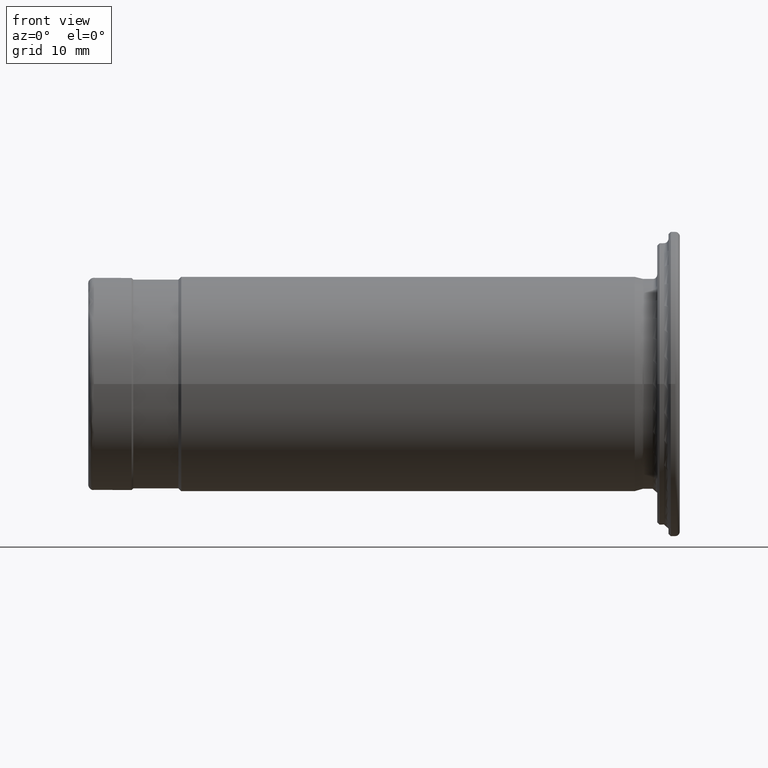
[diagram: clean part render]
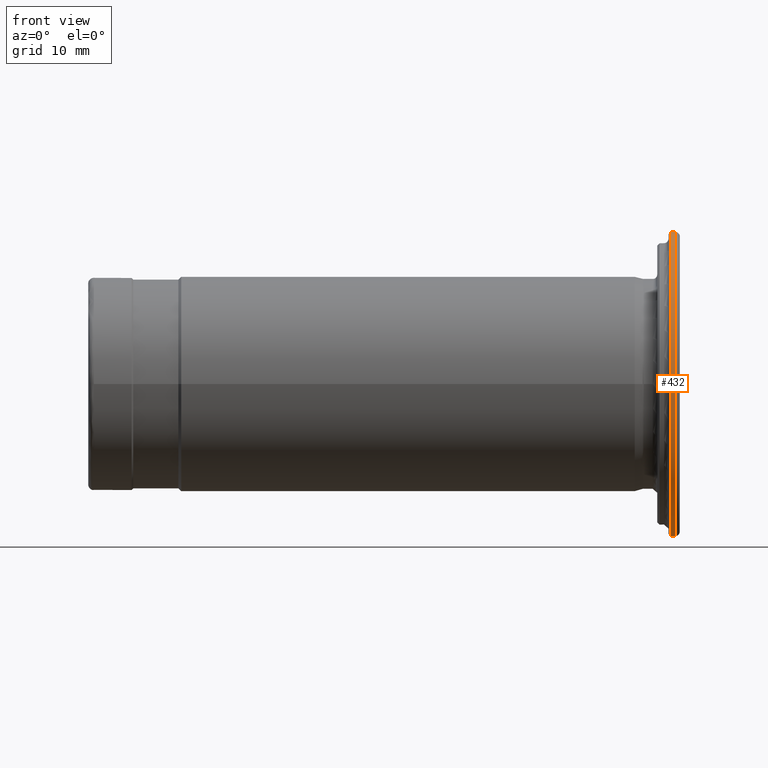
[diagram: same view with one face highlighted and labeled with its STEP entity id]
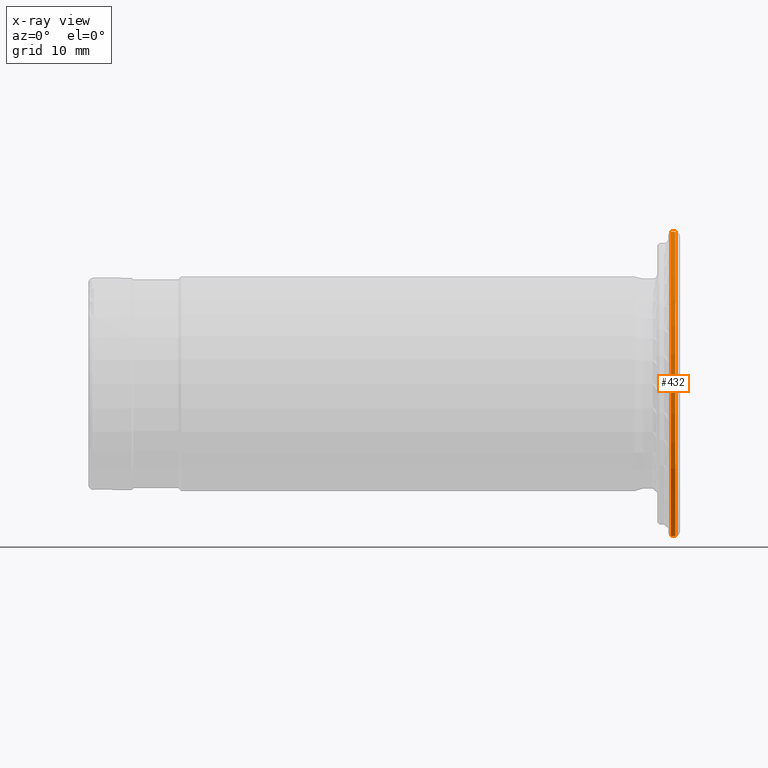
[diagram: x-ray of the same camera — body ghosted, the highlighted face saturated]
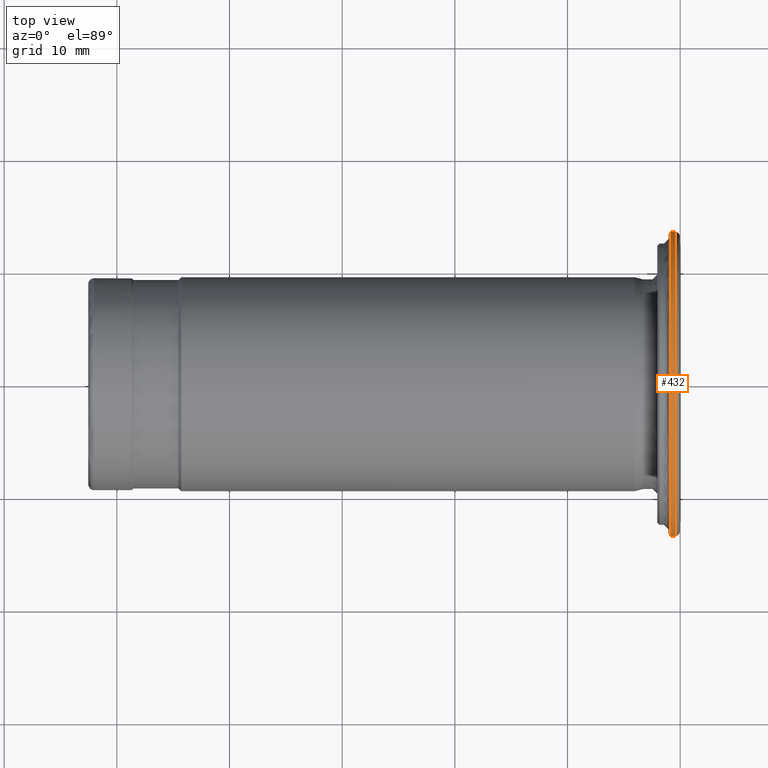
[diagram: same view with one face highlighted and labeled with its STEP entity id]
A machine part, front view. The second image highlights one B-rep face of the part: STEP entity #432.
The next image is the same camera in x-ray: the body ghosted, the highlighted face saturated — about 0% of this face is hidden behind the body in this view.
A second angle (top view) of the same face is appended — the face is thin or edge-on in the first view.
In plain terms, the highlighted cylindrical surface (bore or boss wall) has radius 13.5 mm, axis along (1, 0, 0).
Its self-contained STEP definition (entity closure, byte-faithful):
#25=CYLINDRICAL_SURFACE('',#502,13.5);
#50=FACE_OUTER_BOUND('',#81,.T.);
#81=EDGE_LOOP('',(#330,#331,#332,#333,#334));
#107=LINE('',#774,#124);
#124=VECTOR('',#617,13.5);
#153=CIRCLE('',#501,13.5000000000001);
#154=CIRCLE('',#503,13.5);
#155=CIRCLE('',#504,13.5);
#197=VERTEX_POINT('',#767);
#198=VERTEX_POINT('',#771);
#199=VERTEX_POINT('',#772);
#243=EDGE_CURVE('',#197,#197,#153,.T.);
#245=EDGE_CURVE('',#198,#199,#154,.T.);
#246=EDGE_CURVE('',#198,#197,#107,.T.);
#247=EDGE_CURVE('',#199,#198,#155,.T.);
#330=ORIENTED_EDGE('',*,*,#245,.F.);
#331=ORIENTED_EDGE('',*,*,#246,.T.);
#332=ORIENTED_EDGE('',*,*,#243,.T.);
#333=ORIENTED_EDGE('',*,*,#246,.F.);
#334=ORIENTED_EDGE('',*,*,#247,.F.);
#432=ADVANCED_FACE('',(#50),#25,.T.);
#501=AXIS2_PLACEMENT_3D('',#768,#610,#611);
#502=AXIS2_PLACEMENT_3D('',#770,#613,#614);
#503=AXIS2_PLACEMENT_3D('',#773,#615,#616);
#504=AXIS2_PLACEMENT_3D('',#775,#618,#619);
#610=DIRECTION('center_axis',(1.,0.,0.));
#611=DIRECTION('ref_axis',(0.,0.,-1.));
#613=DIRECTION('center_axis',(1.,0.,0.));
#614=DIRECTION('ref_axis',(0.,1.,0.));
#615=DIRECTION('center_axis',(1.,0.,0.));
#616=DIRECTION('ref_axis',(0.,0.,-1.));
#617=DIRECTION('',(-1.,0.,0.));
#618=DIRECTION('center_axis',(1.,0.,0.));
#619=DIRECTION('ref_axis',(0.,0.,-1.));
#767=CARTESIAN_POINT('',(-0.837344437648894,-13.5000000000001,-1.65327317884894E-15));
#768=CARTESIAN_POINT('Origin',(-0.837344437648895,0.,0.));
#770=CARTESIAN_POINT('Origin',(-0.637344437648046,0.,0.));
#771=CARTESIAN_POINT('',(-0.437344437647198,-13.5,-1.65327317884893E-15));
#772=CARTESIAN_POINT('',(-0.437344437647198,-1.65327317884893E-15,13.5));
#773=CARTESIAN_POINT('Origin',(-0.437344437647198,0.,0.));
#774=CARTESIAN_POINT('',(-0.637344437648046,-13.5,-1.65327317884893E-15));
#775=CARTESIAN_POINT('Origin',(-0.437344437647198,0.,0.));